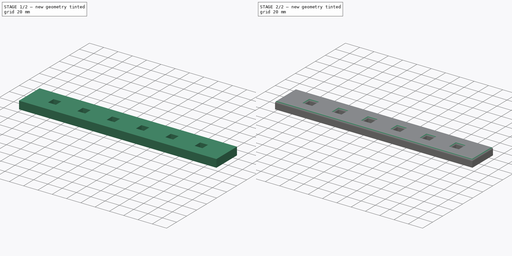
[diagram: build sequence overview — one tinted view per stage of 2, left to right]
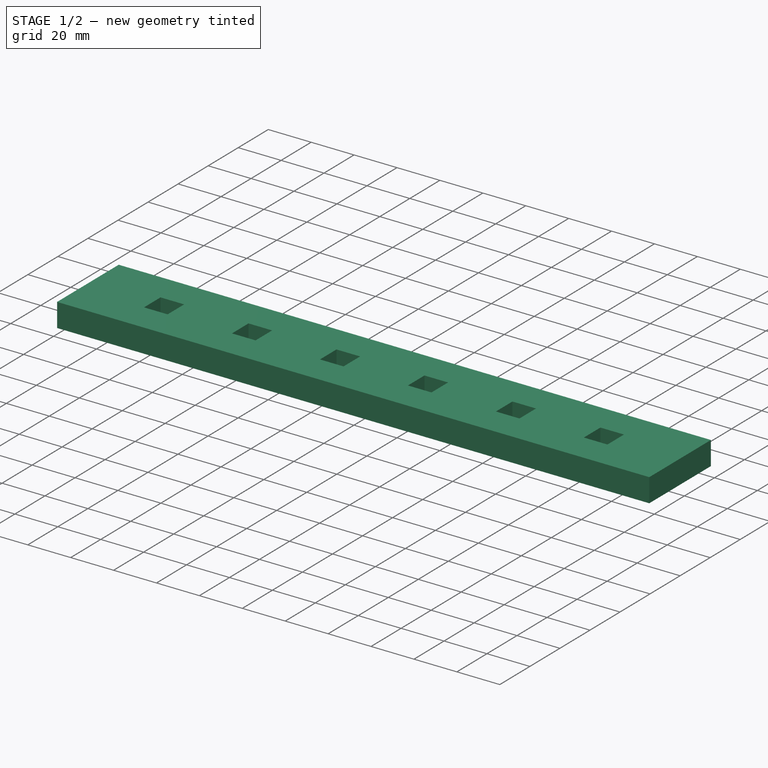
[diagram: stage 1 of 2 — iso view after this stage's code; geometry added in this stage tinted green]
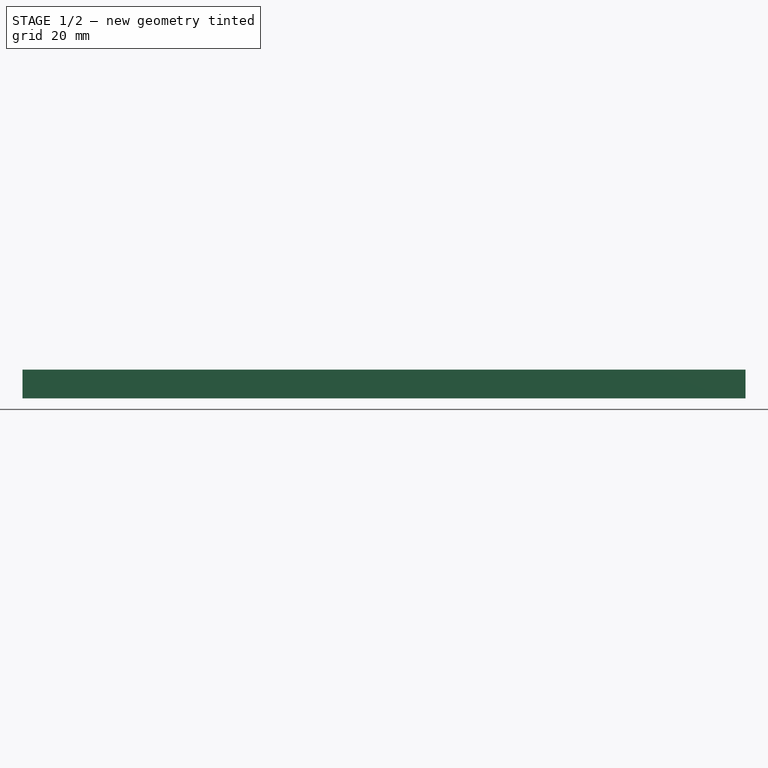
[diagram: stage 1 of 2 — front view after this stage's code; geometry added in this stage tinted green]
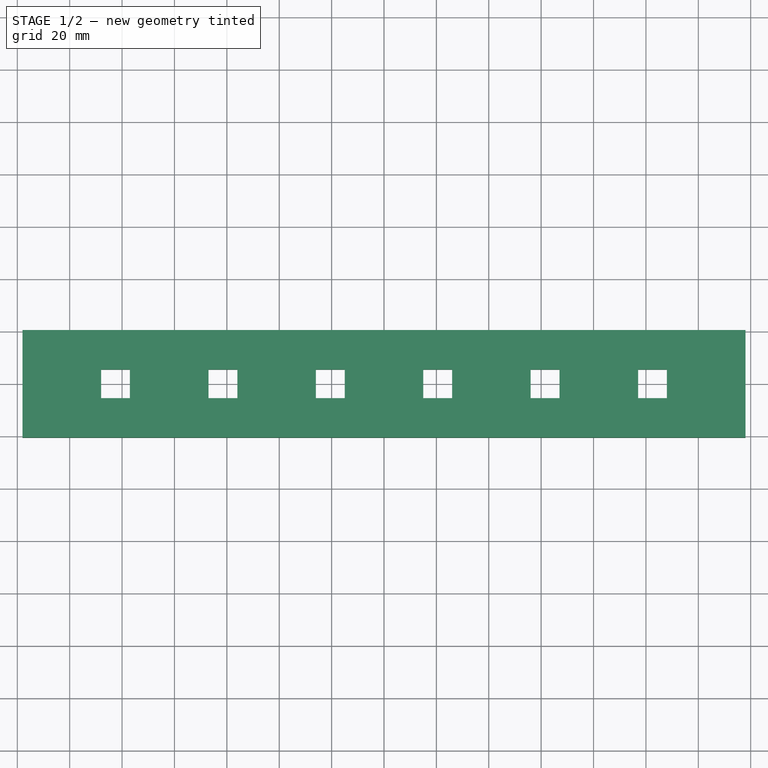
[diagram: stage 1 of 2 — top view after this stage's code; geometry added in this stage tinted green]
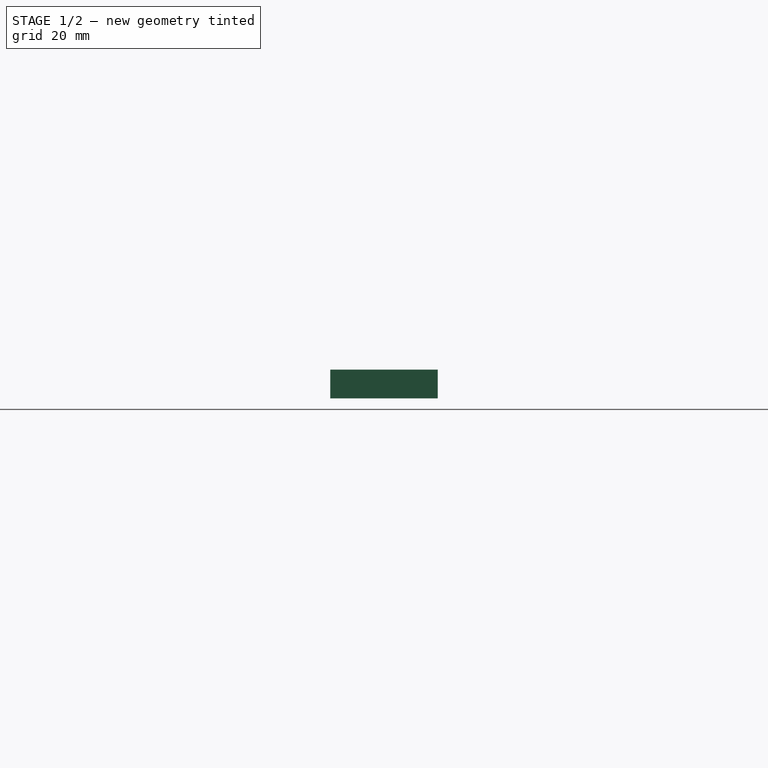
[diagram: stage 1 of 2 — right view after this stage's code; geometry added in this stage tinted green]
FCSTD DOCUMENT  (FreeCAD 1.0R39319 (Git))
Label: hiliter stand
License: All rights reserved
objects: Sketcher::SketchObject×1, PartDesign::Pad×1, PartDesign::Fillet×1, PartDesign::Body×1
note: 9 computed .brp shape members not serialized (recipe doc carries the construction recipe); baked Part::Feature solids carry a one-line shape summary decoded from their .brp

FEATURE [Sketcher::SketchObject] Sketch
  ArcFitTolerance = 1e-06
  AttachmentSupport = -> [XY_Plane]
  FullyConstrained = true
  MakeInternals = false
  MapMode = 5
  sketch-geometry (36):
    g0: LineSegment StartX=-138 StartY=20.5 StartZ=0 EndX=-138 EndY=-20.5 EndZ=0
    g1: LineSegment StartX=-138 StartY=-20.5 StartZ=0 EndX=138 EndY=-20.5 EndZ=0
    g2: LineSegment StartX=138 StartY=-20.5 StartZ=0 EndX=138 EndY=20.5 EndZ=0
    g3: LineSegment StartX=138 StartY=20.5 StartZ=0 EndX=-138 EndY=20.5 EndZ=0
    g4: LineSegment StartX=-108 StartY=5.5 StartZ=0 EndX=-108 EndY=-5.5 EndZ=0
    g5: LineSegment StartX=-108 StartY=-5.5 StartZ=0 EndX=-97 EndY=-5.5 EndZ=0
    g6: LineSegment StartX=-97 StartY=-5.5 StartZ=0 EndX=-97 EndY=5.5 EndZ=0
    g7: LineSegment StartX=-97 StartY=5.5 StartZ=0 EndX=-108 EndY=5.5 EndZ=0
    g8: LineSegment StartX=-67 StartY=5.5 StartZ=0 EndX=-67 EndY=-5.5 EndZ=0
    g9: LineSegment StartX=-67 StartY=-5.5 StartZ=0 EndX=-56 EndY=-5.5 EndZ=0
    g10: LineSegment StartX=-56 StartY=-5.5 StartZ=0 EndX=-56 EndY=5.5 EndZ=0
    g11: LineSegment StartX=-56 StartY=5.5 StartZ=0 EndX=-67 EndY=5.5 EndZ=0
    g12: LineSegment StartX=-26 StartY=5.5 StartZ=0 EndX=-26 EndY=-5.5 EndZ=0
    g13: LineSegment StartX=-26 StartY=-5.5 StartZ=0 EndX=-15 EndY=-5.5 EndZ=0
    g14: LineSegment StartX=-15 StartY=-5.5 StartZ=0 EndX=-15 EndY=5.5 EndZ=0
    g15: LineSegment StartX=-15 StartY=5.5 StartZ=0 EndX=-26 EndY=5.5 EndZ=0
    g16: LineSegment StartX=15 StartY=5.5 StartZ=0 EndX=15 EndY=-5.5 EndZ=0
    g17: LineSegment StartX=15 StartY=-5.5 StartZ=0 EndX=26 EndY=-5.5 EndZ=0
    g18: LineSegment StartX=26 StartY=-5.5 StartZ=0 EndX=26 EndY=5.5 EndZ=0
    g19: LineSegment StartX=26 StartY=5.5 StartZ=0 EndX=15 EndY=5.5 EndZ=0
    g20: LineSegment StartX=56 StartY=5.5 StartZ=0 EndX=56 EndY=-5.5 EndZ=0
    g21: LineSegment StartX=56 StartY=-5.5 StartZ=0 EndX=67 EndY=-5.5 EndZ=0
    g22: LineSegment StartX=67 StartY=-5.5 StartZ=0 EndX=67 EndY=5.5 EndZ=0
    g23: LineSegment StartX=67 StartY=5.5 StartZ=0 EndX=56 EndY=5.5 EndZ=0
    g24: LineSegment StartX=97 StartY=5.5 StartZ=0 EndX=97 EndY=-5.5 EndZ=0
    g25: LineSegment StartX=97 StartY=-5.5 StartZ=0 EndX=108 EndY=-5.5 EndZ=0
    g26: LineSegment StartX=108 StartY=-5.5 StartZ=0 EndX=108 EndY=5.5 EndZ=0
    g27: LineSegment StartX=108 StartY=5.5 StartZ=0 EndX=97 EndY=5.5 EndZ=0
    g28: LineSegment [constr] StartX=-97 StartY=5.5 StartZ=0 EndX=-67 EndY=5.5 EndZ=0
    g29: LineSegment [constr] StartX=-56 StartY=5.5 StartZ=0 EndX=-26 EndY=5.5 EndZ=0
    g30: LineSegment [constr] StartX=-15 StartY=5.5 StartZ=0 EndX=15 EndY=5.5 EndZ=0
    g31: LineSegment [constr] StartX=26 StartY=5.5 StartZ=0 EndX=56 EndY=5.5 EndZ=0
    g32: LineSegment [constr] StartX=67 StartY=5.5 StartZ=0 EndX=97 EndY=5.5 EndZ=0
    g33: LineSegment [constr] StartX=108 StartY=5.5 StartZ=0 EndX=138 EndY=5.5 EndZ=0
    g34: LineSegment [constr] StartX=-108 StartY=5.5 StartZ=0 EndX=-138 EndY=5.5 EndZ=0
    g35: LineSegment [constr] StartX=-108 StartY=5.5 StartZ=0 EndX=-108 EndY=20.5 EndZ=0
  constraints (99):
    c: Coincident(g0,g1)
    c: Coincident(g1,g2)
    c: Coincident(g2,g3)
    c: Coincident(g3,g0)
    c: Vertical(g0)
    c: Horizontal(g1)
    c: Symmetric(g2,g0,g-2)
    c: Symmetric(g2,g1,g-1)
    c: Coincident(g4,g5)
    c: Coincident(g5,g6)
    c: Coincident(g6,g7)
    c: Coincident(g7,g4)
    c: Vertical(g6)
    c: Horizontal(g5)
    c: Horizontal(g7)
    c: Coincident(g8,g9)
    c: Coincident(g9,g10)
    c: Coincident(g10,g11)
    c: Coincident(g11,g8)
    c: Vertical(g8)
    c: Vertical(g10)
    c: Horizontal(g9)
    c: Horizontal(g11)
    c: Coincident(g12,g13)
    c: Coincident(g13,g14)
    c: Coincident(g14,g15)
    c: Coincident(g15,g12)
    c: Vertical(g12)
    c: Vertical(g14)
    c: Horizontal(g13)
    c: Horizontal(g15)
    c: Coincident(g16,g17)
    c: Coincident(g17,g18)
    c: Coincident(g18,g19)
    c: Coincident(g19,g16)
    c: Vertical(g16)
    c: Vertical(g18)
    c: Horizontal(g17)
    c: Horizontal(g19)
    c: Coincident(g20,g21)
    c: Coincident(g21,g22)
    c: Coincident(g22,g23)
    c: Coincident(g23,g20)
    c: Vertical(g20)
    c: Vertical(g22)
    c: Horizontal(g21)
    c: Horizontal(g23)
    c: Coincident(g24,g25)
    c: Coincident(g25,g26)
    c: Coincident(g26,g27)
    c: Coincident(g27,g24)
    c: Vertical(g24)
    c: Vertical(g26)
    c: Horizontal(g25)
    c: Horizontal(g27)
    c: Equal(g27,g23)
    c: Equal(g23,g19)
    c: Equal(g19,g15)
    c: Equal(g15,g11)
    c: Equal(g11,g7)
    c: Equal(g4,g8)
    c: Equal(g8,g12)
    c: Equal(g12,g16)
    c: Equal(g16,g20)
    c: Equal(g20,g24)
    c: Coincident(g28,g6)
    c: Coincident(g28,g8)
    c: Coincident(g29,g10)
    c: Coincident(g29,g12)
    c: Coincident(g30,g14)
    c: Coincident(g30,g16)
    c: Coincident(g31,g18)
    c: Coincident(g31,g20)
    c: Coincident(g32,g22)
    c: Coincident(g32,g24)
    c: Horizontal(g28)
    c: Horizontal(g29)
    c: Horizontal(g31)
    c: Horizontal(g32)
    c: Equal(g28,g29)
    c: Equal(g29,g30)
    c: Equal(g30,g31)
    c: Equal(g31,g32)
    c: Symmetric(g14,g16,g-2)
    c: Coincident(g33,g26)
    c: PointOnObject(g33,g2)
    c: Horizontal(g33)
    c: Coincident(g34,g4)
    c: PointOnObject(g34,g0)
    c: Horizontal(g34)
    c: Equal(g32,g33)
    c: Symmetric(g4,g4,g-1)
    c: Coincident(g35,g4)
    c: PointOnObject(g35,g3)
    c: Vertical(g35)
    c: Distance(g4) = 11
    c: Distance(g7) = 11
    c: Distance(g35) = 15
    c: Distance(g34) = 30
FEATURE [PartDesign::Pad] Pad
  Direction = (0,0,1)
  Length = 11
  Length2 = 10
  Profile = -> Sketch
  ReferenceAxis = -> Sketch [N_Axis]
  Refine = true
  Suppressed = false
  Type = 0
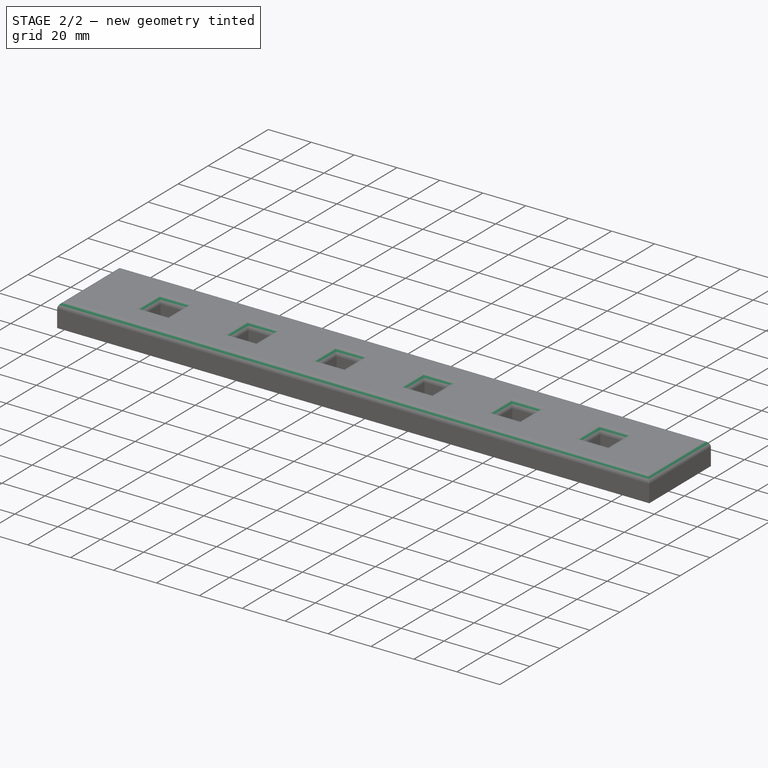
[diagram: stage 2 of 2 — iso view after this stage's code; geometry added in this stage tinted green]
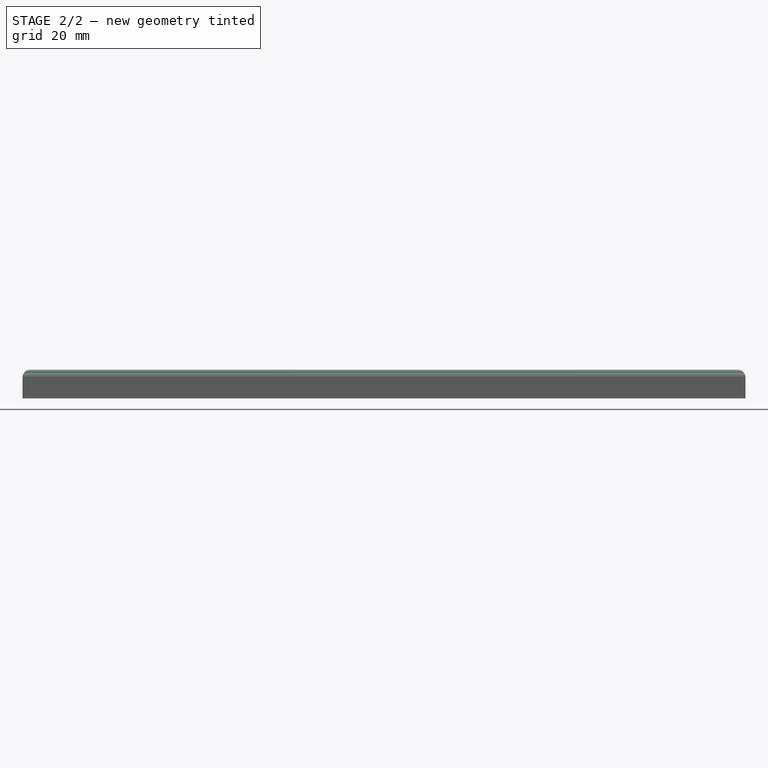
[diagram: stage 2 of 2 — front view after this stage's code; geometry added in this stage tinted green]
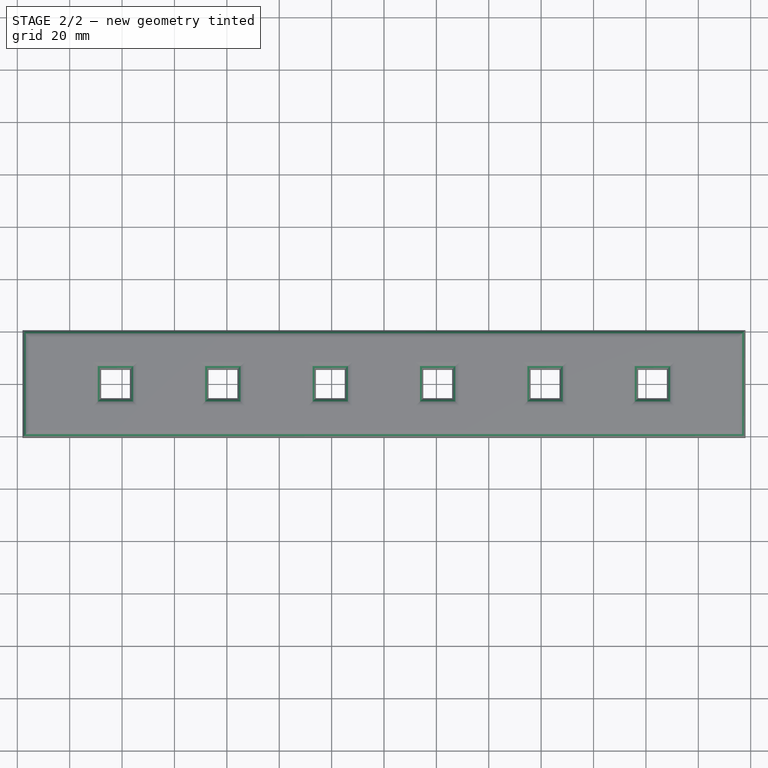
[diagram: stage 2 of 2 — top view after this stage's code; geometry added in this stage tinted green]
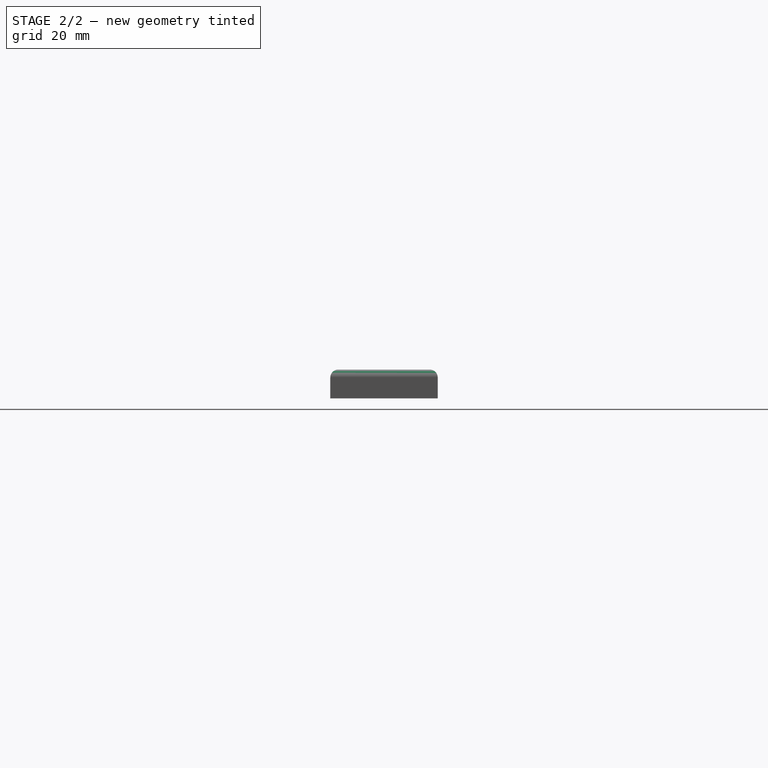
[diagram: stage 2 of 2 — right view after this stage's code; geometry added in this stage tinted green]
FEATURE [PartDesign::Fillet] Fillet
  Base = -> Pad [Face30]
  BaseFeature = -> Pad
  Radius = 3
  Refine = true
  SupportTransform = false
  Suppressed = false
  UseAllEdges = false
FEATURE [PartDesign::Body] Body
  AllowCompound = false
  Group = -> [Sketch,Pad,Fillet]
  Origin = -> Origin
  Tip = -> Fillet
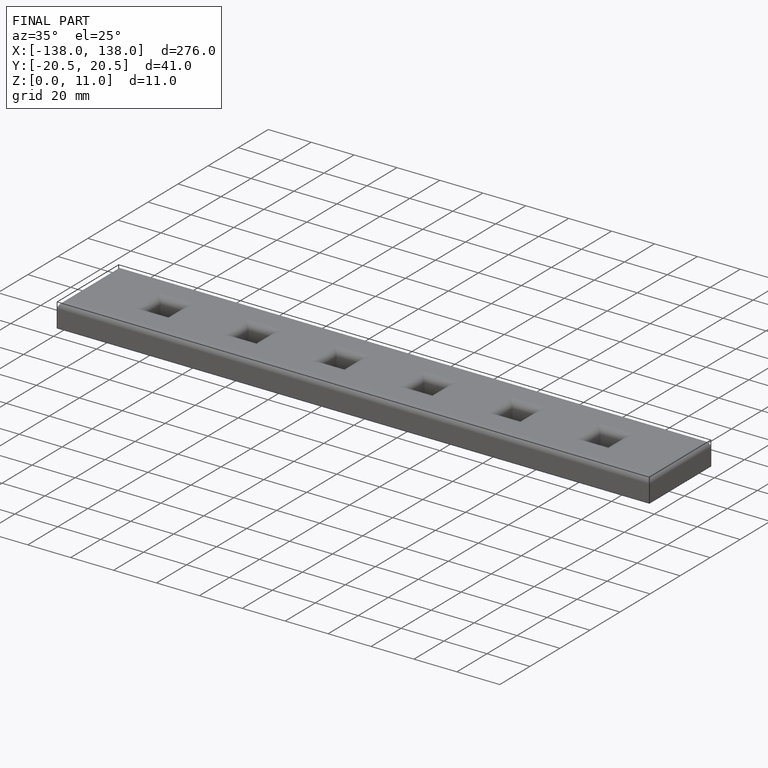
[diagram: finished part — iso view with bounding-box wireframe]
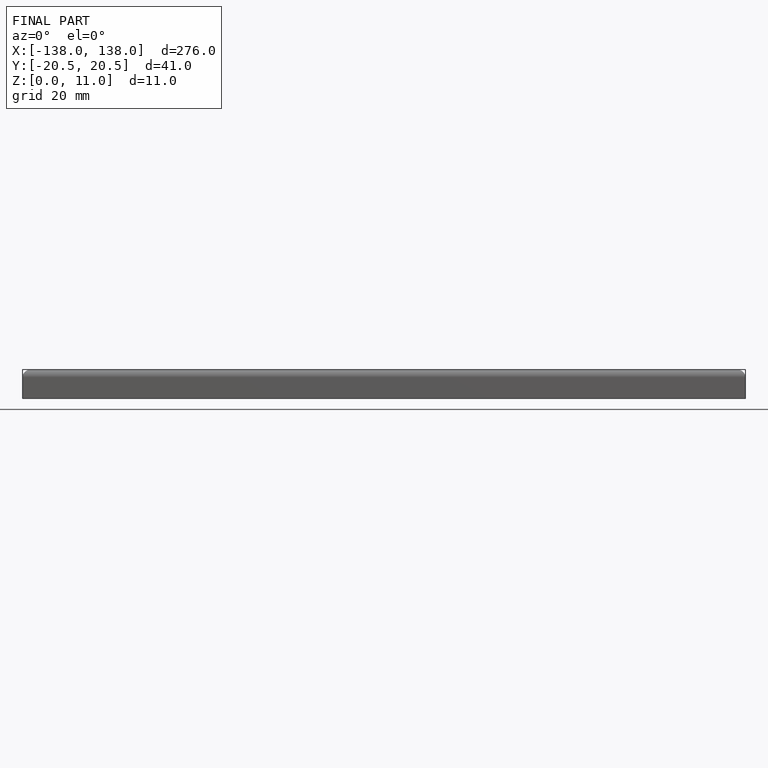
[diagram: finished part — front view with bounding-box wireframe]
